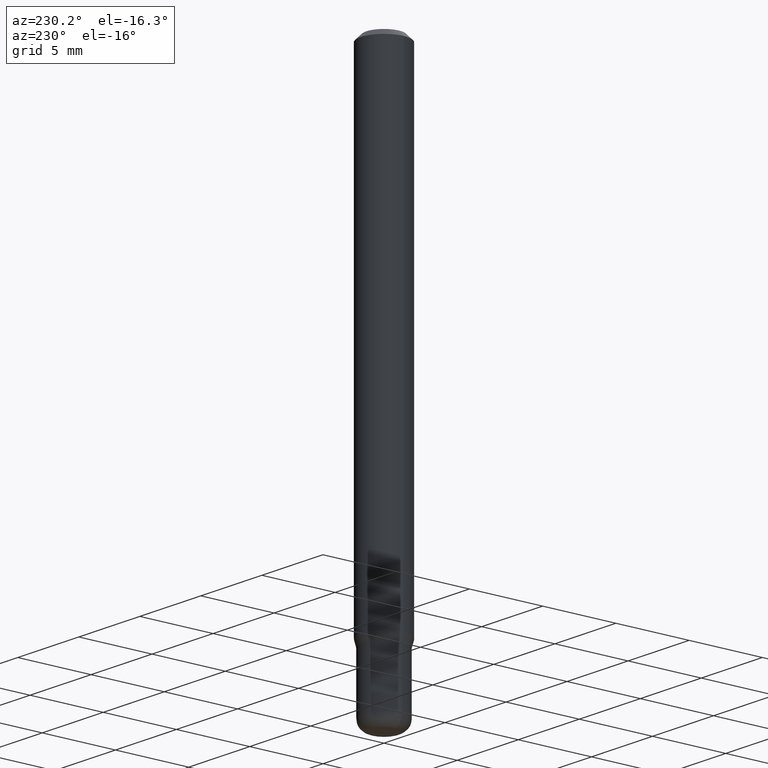
[diagram: clean part render]
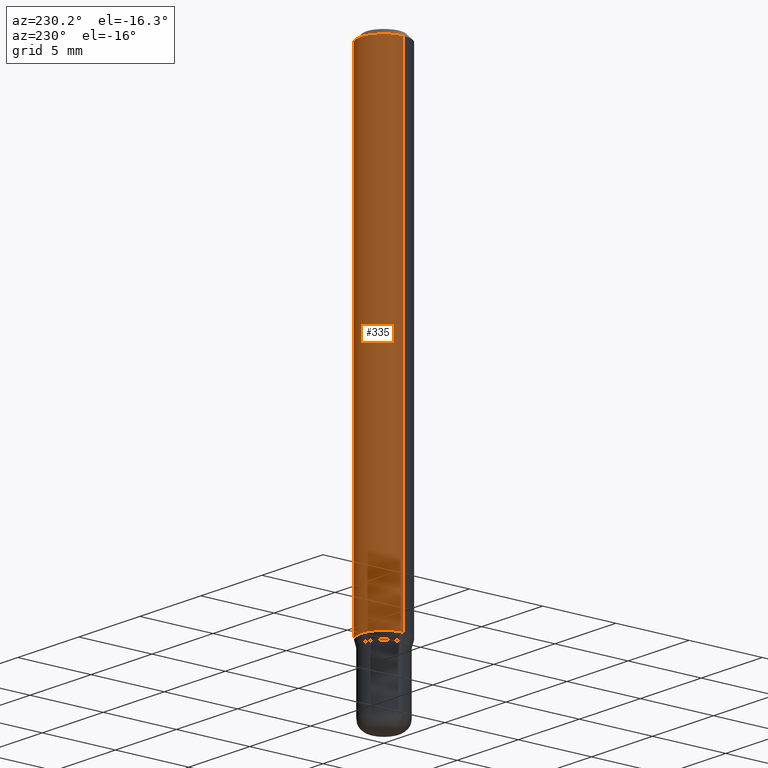
[diagram: same view with one face highlighted and labeled with its STEP entity id]
A machine part, auxiliary view. The second image highlights one B-rep face of the part: STEP entity #335.
In plain terms, the highlighted cylindrical surface (edge-blend (fillet) strip) has radius 1.5875 mm, axis along (-0, 0, 1).
Its self-contained STEP definition (entity closure, byte-faithful):
#1 = DIRECTION ( 'NONE',  ( -2.445468806185136597E-29, 3.491481338843145583E-15, 1.000000000000000000 ) ) ;
#11 = ORIENTED_EDGE ( 'NONE', *, *, #384, .F. ) ;
#19 = FACE_OUTER_BOUND ( 'NONE', #256, .T. ) ;
#26 = AXIS2_PLACEMENT_3D ( 'NONE', #328, #415, #362 ) ;
#30 = CARTESIAN_POINT ( 'NONE',  ( 3.668203209277632395E-31, -5.237222008264614861E-17, -0.01499999999999970281 ) ) ;
#32 = DIRECTION ( 'NONE',  ( 1.000000000000000000, -6.982962677686262766E-15, 0.000000000000000000 ) ) ;
#35 = DIRECTION ( 'NONE',  ( -2.445468806185136877E-29, 3.491481338843145188E-15, 1.000000000000000000 ) ) ;
#42 = DIRECTION ( 'NONE',  ( -2.445468806185136877E-29, 3.491481338843145188E-15, 1.000000000000000000 ) ) ;
#109 = CARTESIAN_POINT ( 'NONE',  ( -0.06250000000000000000, -1.848661397443869877E-15, -0.01499999999999970281 ) ) ;
#122 = DIRECTION ( 'NONE',  ( 1.000000000000000000, -6.982962677686266711E-15, 0.000000000000000000 ) ) ;
#133 = CYLINDRICAL_SURFACE ( 'NONE', #26, 0.06250000000000000000 ) ;
#149 = CIRCLE ( 'NONE', #408, 0.06250000000000000000 ) ;
#197 = AXIS2_PLACEMENT_3D ( 'NONE', #477, #1, #32 ) ;
#256 = EDGE_LOOP ( 'NONE', ( #361, #322, #11, #447 ) ) ;
#257 = EDGE_CURVE ( 'NONE', #405, #497, #347, .T. ) ;
#274 = CARTESIAN_POINT ( 'NONE',  ( 0.06250000000000000000, -4.364351673553916694E-16, 3.047610484872459871E-30 ) ) ;
#316 = LINE ( 'NONE', #274, #488 ) ;
#322 = ORIENTED_EDGE ( 'NONE', *, *, #257, .T. ) ;
#328 = CARTESIAN_POINT ( 'NONE',  ( 0.000000000000000000, 0.000000000000000000, 0.000000000000000000 ) ) ;
#335 = ADVANCED_FACE ( 'NONE', ( #19 ), #133, .T. ) ;
#341 = EDGE_CURVE ( 'NONE', #449, #405, #424, .T. ) ;
#345 = CARTESIAN_POINT ( 'NONE',  ( 0.06250000000000000000, -4.888073874380378612E-16, -0.01499999999999970281 ) ) ;
#347 = LINE ( 'NONE', #484, #504 ) ;
#356 = EDGE_CURVE ( 'NONE', #449, #445, #316, .T. ) ;
#361 = ORIENTED_EDGE ( 'NONE', *, *, #341, .T. ) ;
#362 = DIRECTION ( 'NONE',  ( 1.000000000000000000, -6.982962677686266711E-15, 4.876176775795935793E-29 ) ) ;
#384 = EDGE_CURVE ( 'NONE', #445, #497, #149, .T. ) ;
#399 = CARTESIAN_POINT ( 'NONE',  ( -0.06250000000000000000, -4.089039784655156474E-15, -1.298339745962156178 ) ) ;
#405 = VERTEX_POINT ( 'NONE', #399 ) ;
#408 = AXIS2_PLACEMENT_3D ( 'NONE', #30, #486, #122 ) ;
#415 = DIRECTION ( 'NONE',  ( -2.445468806185136597E-29, 3.491481338843145583E-15, 1.000000000000000000 ) ) ;
#424 = CIRCLE ( 'NONE', #197, 0.06250000000000000000 ) ;
#445 = VERTEX_POINT ( 'NONE', #345 ) ;
#447 = ORIENTED_EDGE ( 'NONE', *, *, #356, .F. ) ;
#449 = VERTEX_POINT ( 'NONE', #500 ) ;
#477 = CARTESIAN_POINT ( 'NONE',  ( 3.175049348580787854E-29, -4.533128994505219090E-15, -1.298339745962156178 ) ) ;
#484 = CARTESIAN_POINT ( 'NONE',  ( -0.06250000000000000000, 4.440892098500626162E-16, -3.074334431409316114E-30 ) ) ;
#486 = DIRECTION ( 'NONE',  ( -2.445468806185136597E-29, 3.491481338843145583E-15, 1.000000000000000000 ) ) ;
#488 = VECTOR ( 'NONE', #35, 39.37007874015748143 ) ;
#497 = VERTEX_POINT ( 'NONE', #109 ) ;
#500 = CARTESIAN_POINT ( 'NONE',  ( 0.06250000000000000000, -4.969564161860609971E-15, -1.298339745962156178 ) ) ;
#504 = VECTOR ( 'NONE', #42, 39.37007874015748143 ) ;